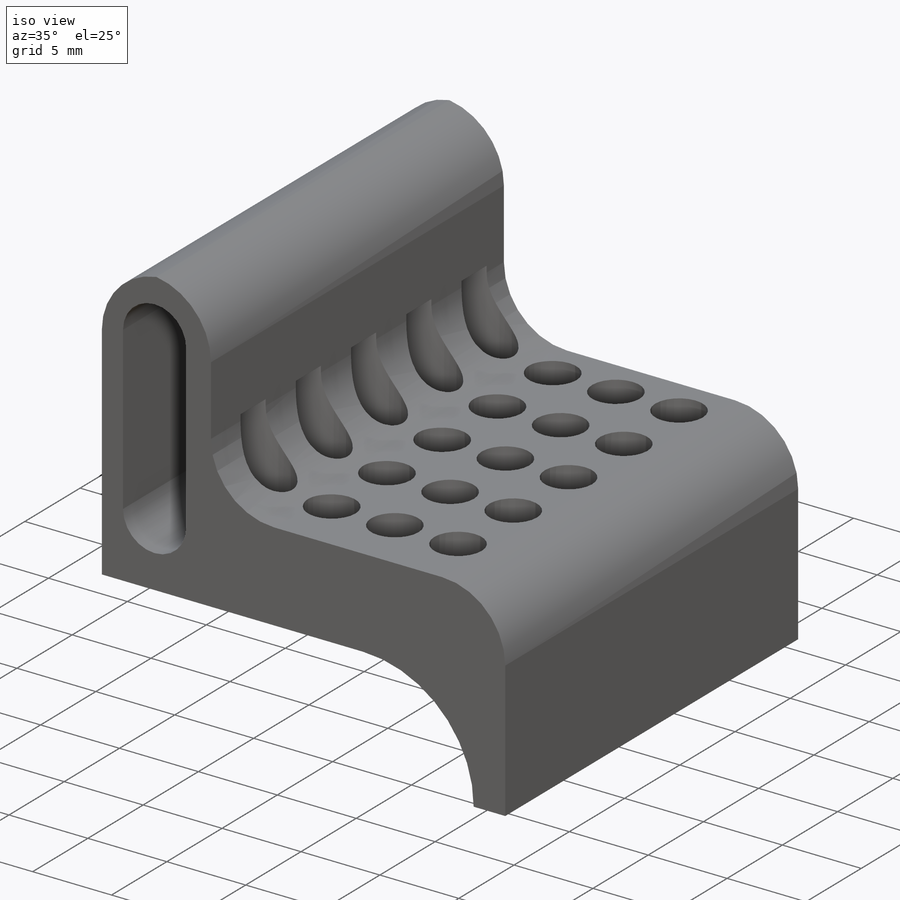
[diagram: iso view]
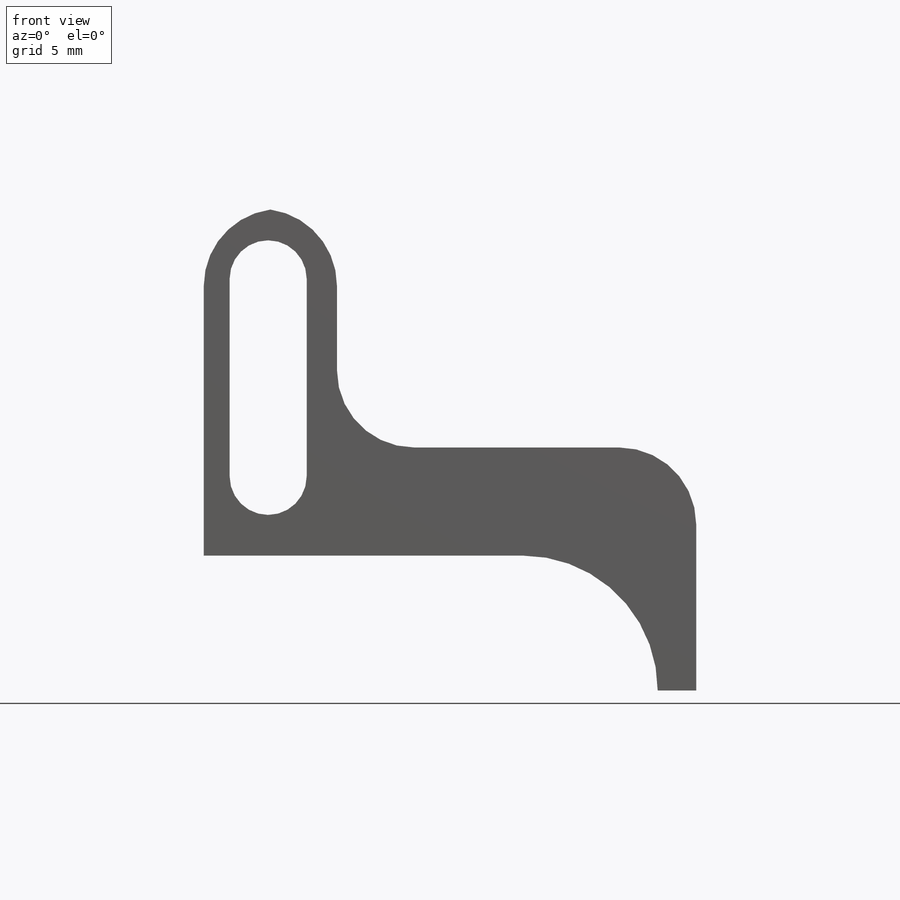
[diagram: front view]
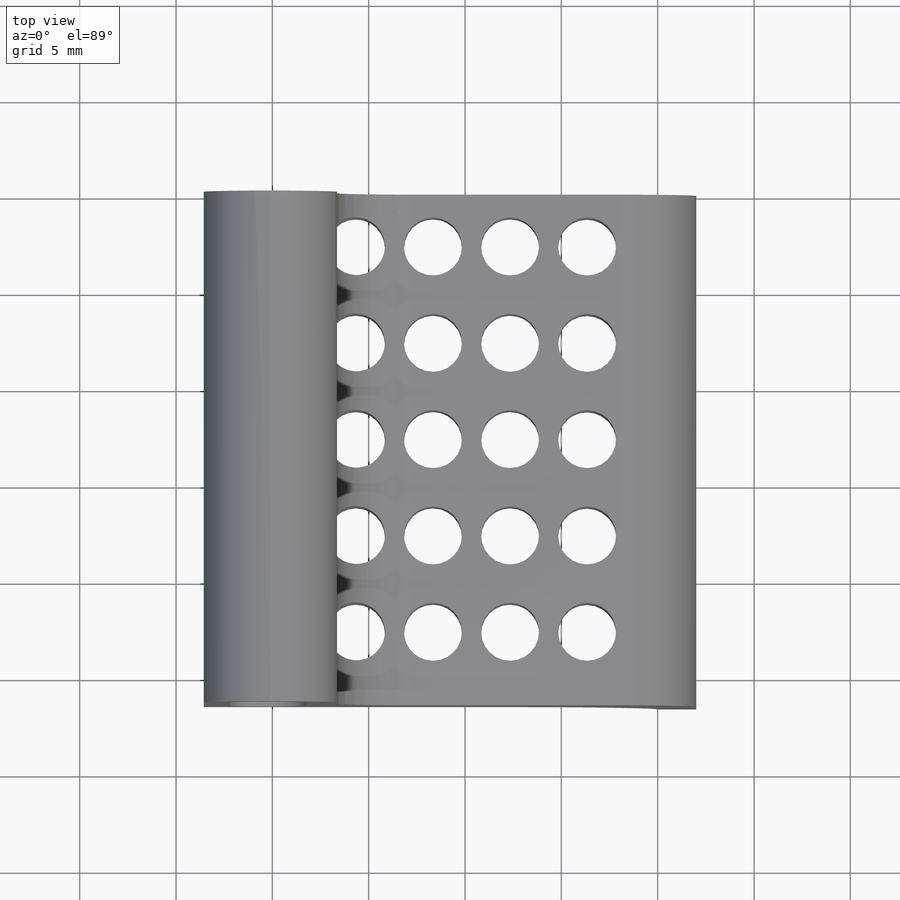
[diagram: top view]
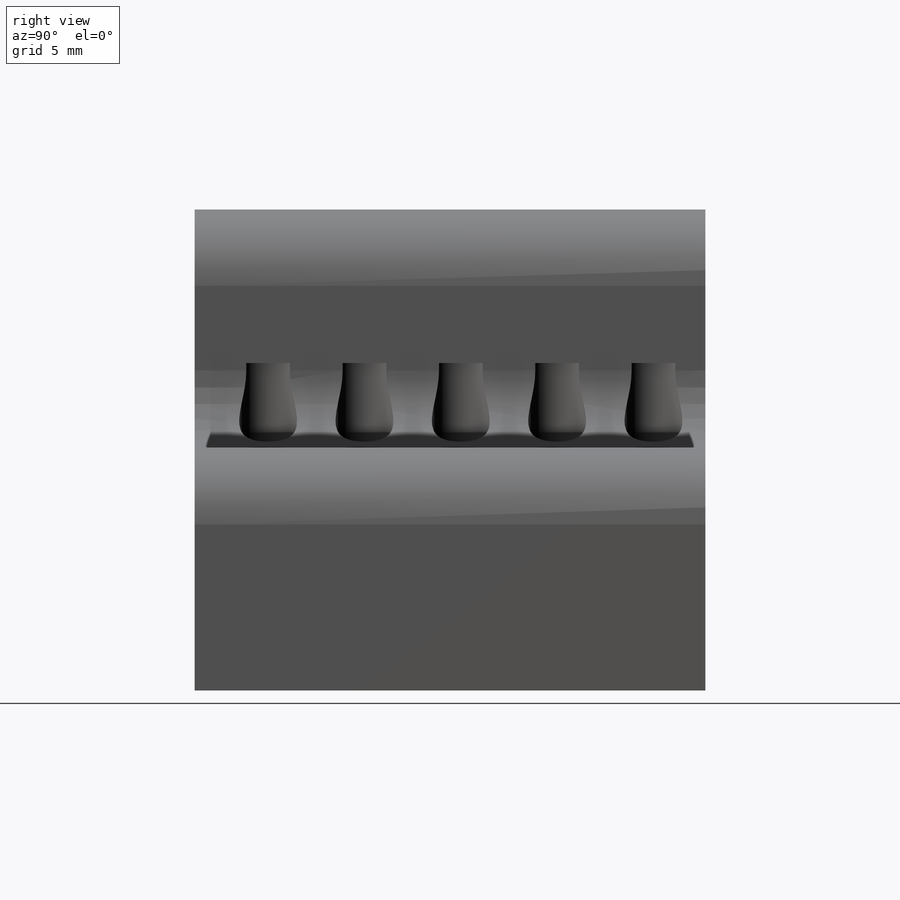
[diagram: right view]
SOLIDWORKS PART (.sldprt)
format: sldprt  version: not decoded by parser v0  size: 290,304 bytes
history: native  units: mm
features: plane x3, sketch x2, material x1, extrude x1, fillet x1, cut_extrude x1 (+10 scaffold rows collapsed)
feature tree (19):
  scaffold x10  (default folders/planes/origin — collapsed)
  material  "Matériau <non spécifié>"
  plane  "Plan de face"
  plane  "Plan de dessus"
  plane  "Plan de droite"
  sketch  "Esquisse1"  dims[c1.D5=~1.967604mm c1.D2=~2.059743mm c1.D1=18.0mm c2.D2=32.0mm c2.D3=2.0mm c2.D4=7.0mm c2.D5=7.0mm c2.D6=7.0mm]
  extrude  "Boss.-Extru.1"  Depth=26.51mm
  fillet  "Congé1"  Radius=4mm
  sketch  "Esquisse2"  dims[c1.D2=~1.446792mm c1.D1=~1.475798mm c2.D2=12.0mm c3.D2=4.0 c3.D1=5.0]
  cut_extrude  "Enlèv. mat.-Extru.1"  Depth=10mm
decode coverage: 5 of 5 modeling features carry decoded parameters
note: ~ marks probable driven/reference dimensions
note: suppression state not decoded; provenance and decode notes live in map.json
